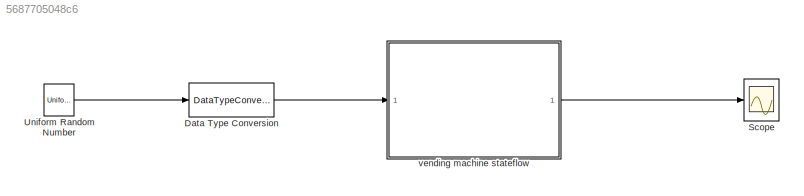
MODEL slx_5687705048c6
KIND model
CONFIG AbsTol = auto
CONFIG EnableMultiTasking = off
CONFIG FixedStep = auto
CONFIG MaxStep = auto
CONFIG MinStep = auto
CONFIG RelTol = 1e-3
CONFIG SampleTimeConstraint = Unconstrained
CONFIG SolverName = FixedStepDiscrete
CONFIG StartTime = 0.0
CONFIG StopTime = 100
BLOCK [DataTypeConversion] Data Type Conversion
  OutDataTypeStr = int8
  RndMeth = Nearest
  SaturateOnIntegerOverflow = off
BLOCK [Scope] Scope
  Floating = off
  NumInputPorts = 1
  Ports = [1]
  ScopeSpecificationString = Simulink.scopes.TimeScopeBlockCfg('CurrentConfiguration', extmgr.ConfigurationSet(extmgr.Configuration('Core','General UI',true),extmgr.Configuration('Core','Source UI',true),extmgr.Configuration('Sources','WiredSimulink',true),extmgr.Configuration('Visuals','Time Domain',true,'SerializedDisplays',{struct('MinYLimReal','-0.125','MaxYLimReal','1.125','YLabelReal','','MinYLimMag','0.00000','MaxYLimM...<+1472ch>
BLOCK [UniformRandomNumber] Uniform Random Number
  Maximum = 2
  Minimum = 0
  SampleTime = 10
  Seed = 330
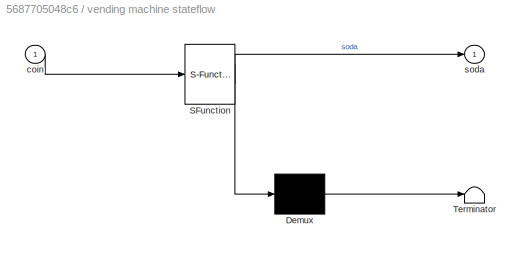
BLOCK [SubSystem] vending machine stateflow
  ErrorFcn = Stateflow.Translate.translate
  PermitHierarchicalResolution = ExplicitOnly
  Ports = [1, 1]
  RequestExecContextInheritance = off
  SFBlockType = Chart
  TreatAsAtomicUnit = on
BLOCK [Demux] vending machine stateflow/ Demux 
  Outputs = 1
  Ports = [1, 1]
BLOCK [S-Function] vending machine stateflow/ SFunction 
  EnableBusSupport = on
  FunctionName = sf_sfun
  PortCounts = [1 2]
  Ports = [1, 2]
  SFcnIsStateOwnerBlock = off
  SFunctionDeploymentMode = off
  Tag = Stateflow S-Function 3
BLOCK [Terminator] vending machine stateflow/ Terminator 
BLOCK [Inport] vending machine stateflow/coin
BLOCK [Outport] vending machine stateflow/soda
LINE Data Type Conversion:1 -> vending machine stateflow:1
LINE Uniform Random Number:1 -> Data Type Conversion:1
LINE vending machine stateflow:1 -> Scope:1
CHART vending machine stateflow states=3 transitions=7
  STATE_LABEL 'got_nothing'
  STATE_LABEL 'got_nickel'
  STATE_LABEL 'got_dime'
CHART  states=0 transitions=0
